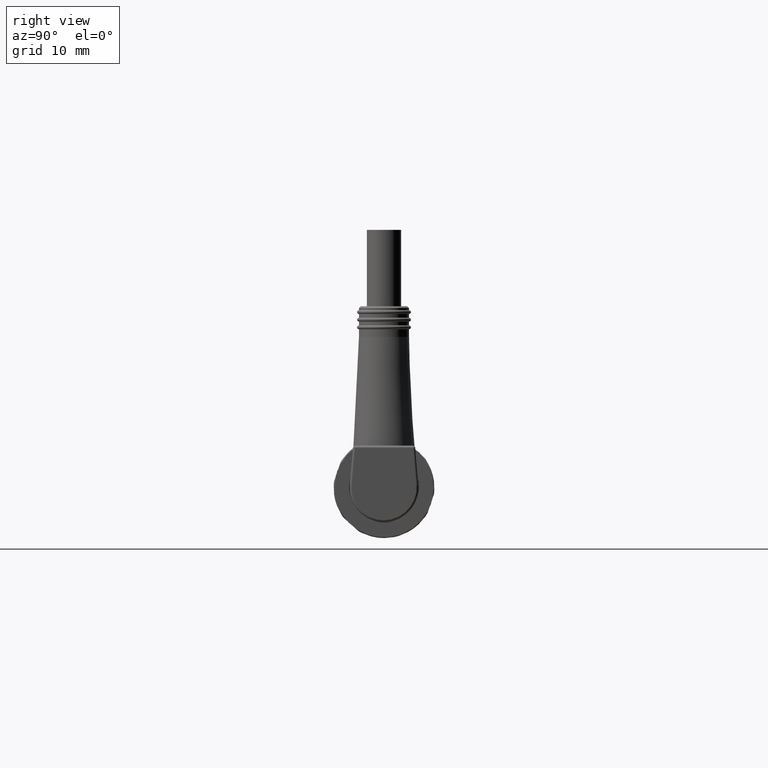
[diagram: clean part render]
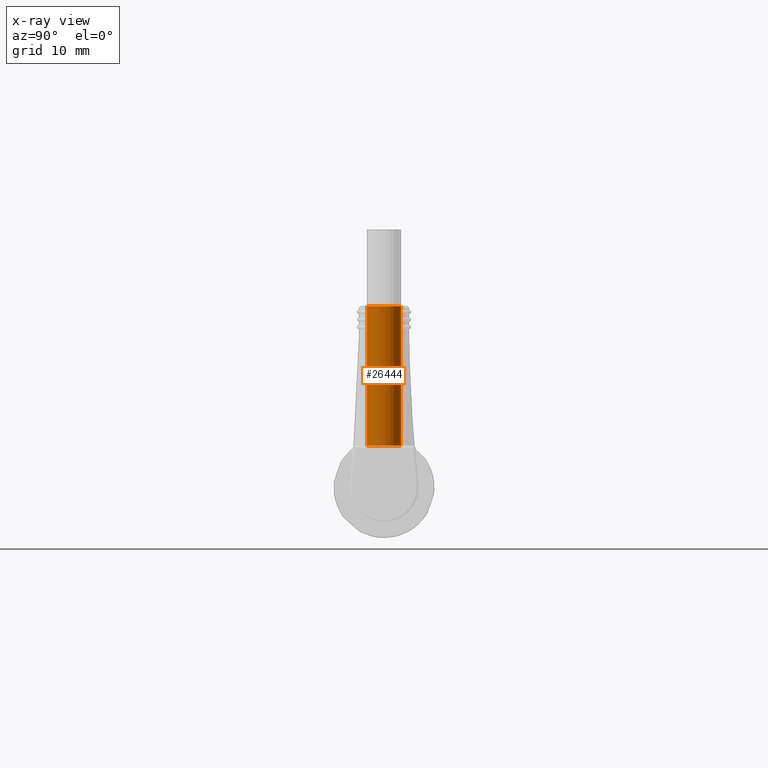
[diagram: x-ray — body ghosted, one internal face saturated and labeled with its STEP entity id]
A machine part, right view, then the same camera in x-ray: the body is ghosted and one INTERNAL B-rep face — a face not visible from any outside direction — is saturated and labeled: STEP entity #26444.
In plain terms, the highlighted cylindrical surface (bore or boss wall) has radius 2.25 mm, axis along (-0, -0, -1).
Its self-contained STEP definition (entity closure, byte-faithful):
#1317=FACE_BOUND('',#8915,.T.);
#6911=CYLINDRICAL_SURFACE('',#27947,0.0885826771653544);
#7468=FACE_OUTER_BOUND('',#8914,.T.);
#8914=EDGE_LOOP('',(#19496));
#8915=EDGE_LOOP('',(#19497));
#10058=CIRCLE('',#27447,0.0885826771653543);
#10115=CIRCLE('',#27924,0.0885826771653544);
#10791=VERTEX_POINT('',#35435);
#11584=VERTEX_POINT('',#38039);
#13318=EDGE_CURVE('',#10791,#10791,#10058,.T.);
#14514=EDGE_CURVE('',#11584,#11584,#10115,.T.);
#19496=ORIENTED_EDGE('',*,*,#13318,.F.);
#19497=ORIENTED_EDGE('',*,*,#14514,.T.);
#26444=ADVANCED_FACE('',(#7468,#1317),#6911,.F.);
#27447=AXIS2_PLACEMENT_3D('',#35436,#29297,#29298);
#27924=AXIS2_PLACEMENT_3D('',#38040,#31376,#31377);
#27947=AXIS2_PLACEMENT_3D('',#38073,#31423,#31424);
#29297=DIRECTION('center_axis',(-3.94430452610506E-31,-4.37905770101506E-47,
-1.));
#29298=DIRECTION('ref_axis',(-6.43325774138834E-16,-1.,2.97537853279735E-46));
#31376=DIRECTION('center_axis',(-3.94430452610506E-31,-4.37905770101506E-47,
-1.));
#31377=DIRECTION('ref_axis',(-6.43325774138834E-16,-1.,2.97537853279735E-46));
#31423=DIRECTION('center_axis',(-2.50868200000009E-17,-8.437647E-16,-1.));
#31424=DIRECTION('ref_axis',(-6.43325774138834E-16,-1.,8.437647E-16));
#35435=CARTESIAN_POINT('',(3.0561968503937,-0.0885826771653536,0.935039370078741));
#35436=CARTESIAN_POINT('Origin',(3.0561968503937,7.0261192974412E-16,0.935039370078741));
#38039=CARTESIAN_POINT('',(3.0561968503937,-0.0885826771653543,0.216535433070867));
#38040=CARTESIAN_POINT('Origin',(3.0561968503937,9.63635832874265E-17,0.216535433070867));
#38073=CARTESIAN_POINT('Origin',(3.0561968503937,3.99487913996088E-16,0.575787401574804));